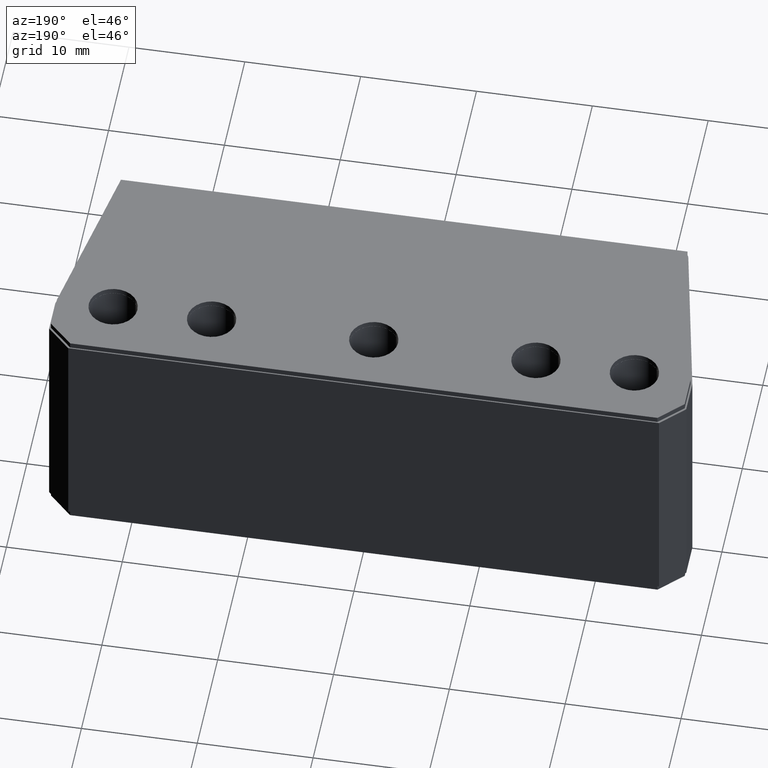
[diagram: clean part render]
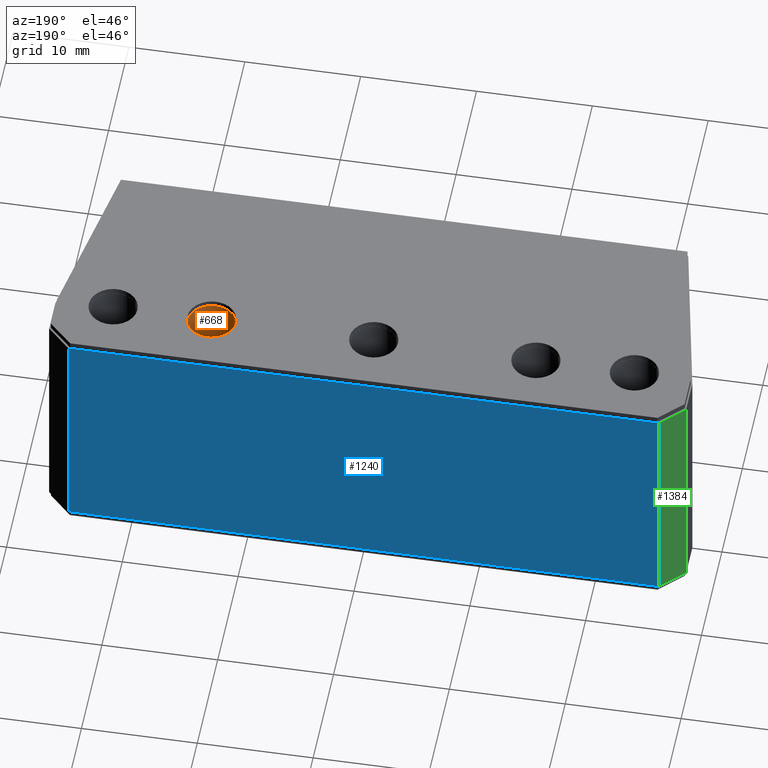
[diagram: same view with three faces highlighted in distinct colors, each labeled with its STEP entity id]
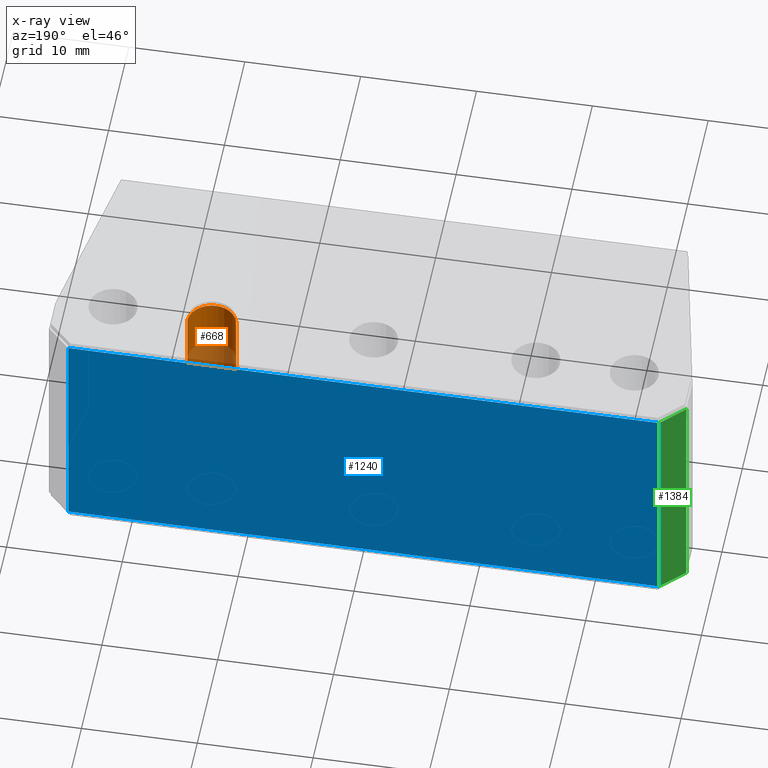
[diagram: x-ray of the same camera — body ghosted, the three highlighted faces saturated]
A machine part, auxiliary view with three faces highlighted in distinct colors.
The next image is the same camera in x-ray (body ghosted, the three faces saturated) — at least one of them is partly hidden behind the body in this view.
Their STEP definitions:

[orange] entity #668 — the highlighted cylindrical surface (edge-blend (fillet) strip) has radius 2.1 mm, axis along (-0, -0, 1).
#668 = ADVANCED_FACE ( 'NONE', ( #4071 ), #4034, .F. ) ;
#669 = EDGE_LOOP ( 'NONE', ( #675, #840, #843, #672 ) ) ;
#670 = VERTEX_POINT ( 'NONE', #4035 ) ;
#671 = VERTEX_POINT ( 'NONE', #4030 ) ;
#672 = ORIENTED_EDGE ( 'NONE', *, *, #673, .F. ) ;
#673 = EDGE_CURVE ( 'NONE', #670, #671, #4029, .T. ) ;
#675 = ORIENTED_EDGE ( 'NONE', *, *, #676, .T. ) ;
#676 = EDGE_CURVE ( 'NONE', #670, #677, #4023, .T. ) ;
#677 = VERTEX_POINT ( 'NONE', #4270 ) ;
#840 = ORIENTED_EDGE ( 'NONE', *, *, #841, .T. ) ;
#841 = EDGE_CURVE ( 'NONE', #677, #842, #4678, .T. ) ;
#842 = VERTEX_POINT ( 'NONE', #4670 ) ;
#843 = ORIENTED_EDGE ( 'NONE', *, *, #844, .T. ) ;
#844 = EDGE_CURVE ( 'NONE', #842, #671, #4587, .T. ) ;
#3789 = DIRECTION ( 'NONE',  ( -1.000000000000000000, 0.0000000000000000000, 0.0000000000000000000 ) ) ;
#4020 = DIRECTION ( 'NONE',  ( 1.848892746611746400E-032, 5.296998494942644200E-033, -1.000000000000000000 ) ) ;
#4021 = CARTESIAN_POINT ( 'NONE',  ( 13.81481481481482000, 11.32716049382709200, -19.99999999997908200 ) ) ;
#4022 = AXIS2_PLACEMENT_3D ( 'NONE', #4021, #4020, #3789 ) ;
#4023 = CIRCLE ( 'NONE', #4022, 2.099999999999999600 ) ;
#4026 = DIRECTION ( 'NONE',  ( -1.848892746611747000E-032, -5.296998494942644900E-033, 1.000000000000000000 ) ) ;
#4027 = VECTOR ( 'NONE', #4026, 1000.000000000000000 ) ;
#4028 = CARTESIAN_POINT ( 'NONE',  ( 15.91481481481482000, 11.32716049382709200, -20.99999999997908500 ) ) ;
#4029 = LINE ( 'NONE', #4028, #4027 ) ;
#4030 = CARTESIAN_POINT ( 'NONE',  ( 15.91481481481482000, 11.32716049382709200, 2.091903039680431700E-011 ) ) ;
#4031 = DIRECTION ( 'NONE',  ( 1.000000000000000000, 0.0000000000000000000, 0.0000000000000000000 ) ) ;
#4032 = DIRECTION ( 'NONE',  ( -1.848892746611747000E-032, -5.296998494942644900E-033, 1.000000000000000000 ) ) ;
#4033 = AXIS2_PLACEMENT_3D ( 'NONE', #4036, #4032, #4031 ) ;
#4034 = CYLINDRICAL_SURFACE ( 'NONE', #4033, 2.099999999999999600 ) ;
#4035 = CARTESIAN_POINT ( 'NONE',  ( 15.91481481481482000, 11.32716049382709200, -19.99999999997908200 ) ) ;
#4036 = CARTESIAN_POINT ( 'NONE',  ( 13.81481481481482000, 11.32716049382709200, -20.99999999997908500 ) ) ;
#4071 = FACE_OUTER_BOUND ( 'NONE', #669, .T. ) ;
#4270 = CARTESIAN_POINT ( 'NONE',  ( 11.71481481481482100, 11.32716049382709200, -19.99999999997908200 ) ) ;
#4583 = DIRECTION ( 'NONE',  ( 1.000000000000000000, 0.0000000000000000000, 0.0000000000000000000 ) ) ;
#4584 = DIRECTION ( 'NONE',  ( -1.848892746611746400E-032, -5.296998494942644200E-033, 1.000000000000000000 ) ) ;
#4585 = CARTESIAN_POINT ( 'NONE',  ( 13.81481481481482000, 11.32716049382709200, 2.091903039680431700E-011 ) ) ;
#4586 = AXIS2_PLACEMENT_3D ( 'NONE', #4585, #4584, #4583 ) ;
#4587 = CIRCLE ( 'NONE', #4586, 2.099999999999999600 ) ;
#4670 = CARTESIAN_POINT ( 'NONE',  ( 11.71481481481482100, 11.32716049382709200, 2.091903039680431700E-011 ) ) ;
#4671 = DIRECTION ( 'NONE',  ( -1.848892746611747000E-032, -5.296998494942644900E-033, 1.000000000000000000 ) ) ;
#4672 = VECTOR ( 'NONE', #4671, 1000.000000000000000 ) ;
#4673 = CARTESIAN_POINT ( 'NONE',  ( 11.71481481481482100, 11.32716049382709200, -20.99999999997908500 ) ) ;
#4678 = LINE ( 'NONE', #4673, #4672 ) ;

[blue] entity #1240 — the highlighted planar face has unit normal (-0, 1, 0).
#1082 = ORIENTED_EDGE ( 'NONE', *, *, #1114, .T. ) ;
#1083 = VERTEX_POINT ( 'NONE', #5345 ) ;
#1084 = EDGE_CURVE ( 'NONE', #1222, #1083, #5344, .T. ) ;
#1114 = EDGE_CURVE ( 'NONE', #1083, #1219, #5168, .T. ) ;
#1218 = VERTEX_POINT ( 'NONE', #8122 ) ;
#1219 = VERTEX_POINT ( 'NONE', #8168 ) ;
#1220 = ORIENTED_EDGE ( 'NONE', *, *, #1221, .T. ) ;
#1221 = EDGE_CURVE ( 'NONE', #1218, #1222, #8159, .T. ) ;
#1222 = VERTEX_POINT ( 'NONE', #8109 ) ;
#1223 = ORIENTED_EDGE ( 'NONE', *, *, #1084, .T. ) ;
#1240 = ADVANCED_FACE ( 'NONE', ( #8198 ), #8187, .T. ) ;
#1241 = EDGE_LOOP ( 'NONE', ( #1242, #1220, #1223, #1082 ) ) ;
#1242 = ORIENTED_EDGE ( 'NONE', *, *, #1243, .F. ) ;
#1243 = EDGE_CURVE ( 'NONE', #1218, #1219, #8181, .T. ) ;
#5165 = DIRECTION ( 'NONE',  ( -1.848892746611746400E-032, -5.296998494942644200E-033, 1.000000000000000000 ) ) ;
#5166 = VECTOR ( 'NONE', #5165, 1000.000000000000000 ) ;
#5167 = CARTESIAN_POINT ( 'NONE',  ( -25.68518518518517300, 16.32716049382709800, -19.99999999997908200 ) ) ;
#5168 = LINE ( 'NONE', #5167, #5166 ) ;
#5341 = DIRECTION ( 'NONE',  ( -1.000000000000000000, 9.860761315262647600E-032, 1.848892746611746400E-032 ) ) ;
#5342 = VECTOR ( 'NONE', #5341, 1000.000000000000000 ) ;
#5343 = CARTESIAN_POINT ( 'NONE',  ( -27.68518518518517300, 16.32716049382709800, -19.99999999997908200 ) ) ;
#5344 = LINE ( 'NONE', #5343, #5342 ) ;
#5345 = CARTESIAN_POINT ( 'NONE',  ( -25.68518518518518700, 16.32716049382709800, -19.99999999997908200 ) ) ;
#8109 = CARTESIAN_POINT ( 'NONE',  ( 25.31481481481481700, 16.32716049382710500, -19.99999999997908200 ) ) ;
#8122 = CARTESIAN_POINT ( 'NONE',  ( 25.31481481481481700, 16.32716049382710500, 2.091903039680431700E-011 ) ) ;
#8156 = DIRECTION ( 'NONE',  ( 1.848892746611746400E-032, 5.296998494942644200E-033, -1.000000000000000000 ) ) ;
#8157 = VECTOR ( 'NONE', #8156, 1000.000000000000000 ) ;
#8158 = CARTESIAN_POINT ( 'NONE',  ( 25.31481481481481700, 16.32716049382710500, -19.99999999997908200 ) ) ;
#8159 = LINE ( 'NONE', #8158, #8157 ) ;
#8168 = CARTESIAN_POINT ( 'NONE',  ( -25.68518518518517300, 16.32716049382709800, 2.091903039680431700E-011 ) ) ;
#8178 = DIRECTION ( 'NONE',  ( -1.000000000000000000, 9.860761315262647600E-032, 1.848892746611746400E-032 ) ) ;
#8179 = VECTOR ( 'NONE', #8178, 1000.000000000000000 ) ;
#8180 = CARTESIAN_POINT ( 'NONE',  ( -27.68518518518517300, 16.32716049382709800, 2.091903039680431700E-011 ) ) ;
#8181 = LINE ( 'NONE', #8180, #8179 ) ;
#8183 = DIRECTION ( 'NONE',  ( -1.848892746611746400E-032, -5.296998494942644200E-033, 1.000000000000000000 ) ) ;
#8184 = DIRECTION ( 'NONE',  ( -9.860761315262647600E-032, 1.000000000000000000, 5.296998494942644200E-033 ) ) ;
#8185 = CARTESIAN_POINT ( 'NONE',  ( -27.68518518518517300, 16.32716049382709800, -19.99999999997908200 ) ) ;
#8186 = AXIS2_PLACEMENT_3D ( 'NONE', #8185, #8184, #8183 ) ;
#8187 = PLANE ( 'NONE',  #8186 ) ;
#8198 = FACE_OUTER_BOUND ( 'NONE', #1241, .T. ) ;

[green] entity #1384 — the highlighted planar face has unit normal (0.7071, -0.7071, -0).
#1081 = VERTEX_POINT ( 'NONE', #5346 ) ;
#1083 = VERTEX_POINT ( 'NONE', #5345 ) ;
#1114 = EDGE_CURVE ( 'NONE', #1083, #1219, #5168, .T. ) ;
#1219 = VERTEX_POINT ( 'NONE', #8168 ) ;
#1314 = EDGE_CURVE ( 'NONE', #1219, #1081, #5777, .T. ) ;
#1320 = ORIENTED_EDGE ( 'NONE', *, *, #1314, .F. ) ;
#1321 = ORIENTED_EDGE ( 'NONE', *, *, #1114, .F. ) ;
#1340 = VERTEX_POINT ( 'NONE', #5872 ) ;
#1384 = ADVANCED_FACE ( 'NONE', ( #5952 ), #5982, .F. ) ;
#1385 = EDGE_LOOP ( 'NONE', ( #1386, #1387, #1320, #1321 ) ) ;
#1386 = ORIENTED_EDGE ( 'NONE', *, *, #1518, .F. ) ;
#1387 = ORIENTED_EDGE ( 'NONE', *, *, #1408, .F. ) ;
#1408 = EDGE_CURVE ( 'NONE', #1081, #1340, #6043, .T. ) ;
#1518 = EDGE_CURVE ( 'NONE', #1340, #1083, #6376, .T. ) ;
#5165 = DIRECTION ( 'NONE',  ( -1.848892746611746400E-032, -5.296998494942644200E-033, 1.000000000000000000 ) ) ;
#5166 = VECTOR ( 'NONE', #5165, 1000.000000000000000 ) ;
#5167 = CARTESIAN_POINT ( 'NONE',  ( -25.68518518518517300, 16.32716049382709800, -19.99999999997908200 ) ) ;
#5168 = LINE ( 'NONE', #5167, #5166 ) ;
#5345 = CARTESIAN_POINT ( 'NONE',  ( -25.68518518518518700, 16.32716049382709800, -19.99999999997908200 ) ) ;
#5346 = CARTESIAN_POINT ( 'NONE',  ( -27.68518518518517300, 14.32716049382708700, 2.091903039680431700E-011 ) ) ;
#5774 = DIRECTION ( 'NONE',  ( -0.7071067811865465700, -0.7071067811865485700, 1.540743955509788700E-032 ) ) ;
#5775 = VECTOR ( 'NONE', #5774, 1000.000000000000000 ) ;
#5776 = CARTESIAN_POINT ( 'NONE',  ( -25.68518518518517300, 16.32716049382709800, 2.091903039680431700E-011 ) ) ;
#5777 = LINE ( 'NONE', #5776, #5775 ) ;
#5872 = CARTESIAN_POINT ( 'NONE',  ( -27.68518518518518000, 14.32716049382708000, -19.99999999997908200 ) ) ;
#5952 = FACE_OUTER_BOUND ( 'NONE', #1385, .T. ) ;
#5976 = DIRECTION ( 'NONE',  ( 0.7071067811865465700, 0.7071067811865485700, -1.540743955509788700E-032 ) ) ;
#5977 = DIRECTION ( 'NONE',  ( 0.7071067811865485700, -0.7071067811865465700, -9.244463733058732100E-033 ) ) ;
#5978 = CARTESIAN_POINT ( 'NONE',  ( -25.68518518518517300, 16.32716049382709800, -19.99999999997908200 ) ) ;
#5979 = AXIS2_PLACEMENT_3D ( 'NONE', #5978, #5977, #5976 ) ;
#5982 = PLANE ( 'NONE',  #5979 ) ;
#6043 = LINE ( 'NONE', #6202, #6201 ) ;
#6200 = DIRECTION ( 'NONE',  ( 1.848892746611746400E-032, 5.296998494942644200E-033, -1.000000000000000000 ) ) ;
#6201 = VECTOR ( 'NONE', #6200, 1000.000000000000000 ) ;
#6202 = CARTESIAN_POINT ( 'NONE',  ( -27.68518518518517300, 14.32716049382708700, -19.99999999997908200 ) ) ;
#6373 = DIRECTION ( 'NONE',  ( 0.7071067811865465700, 0.7071067811865485700, -1.540743955509788700E-032 ) ) ;
#6374 = VECTOR ( 'NONE', #6373, 1000.000000000000000 ) ;
#6375 = CARTESIAN_POINT ( 'NONE',  ( 0.8148148148147526000, 42.82716049382709400, -19.99999999997908200 ) ) ;
#6376 = LINE ( 'NONE', #6375, #6374 ) ;
#8168 = CARTESIAN_POINT ( 'NONE',  ( -25.68518518518517300, 16.32716049382709800, 2.091903039680431700E-011 ) ) ;